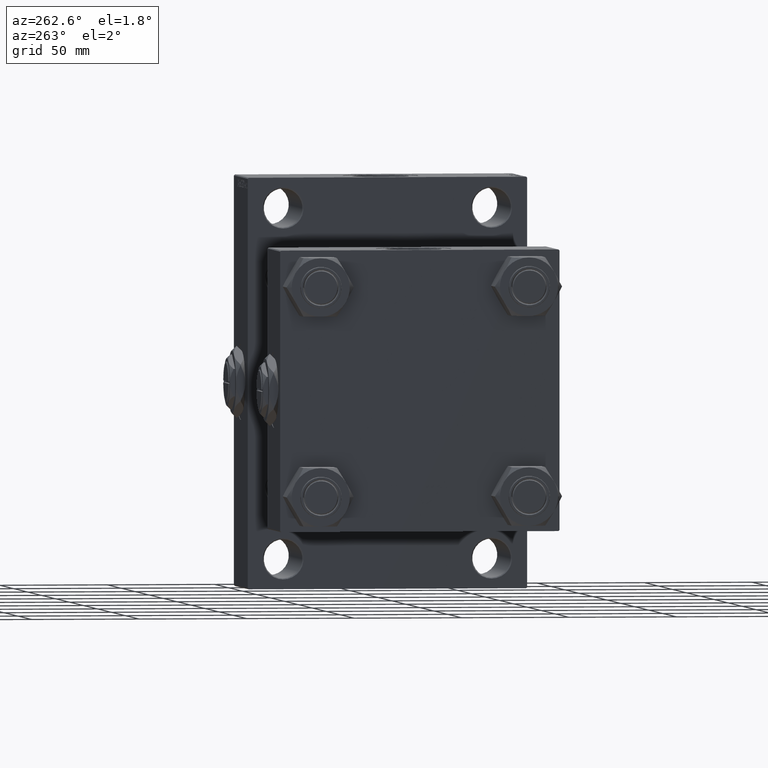
[diagram: clean part render]
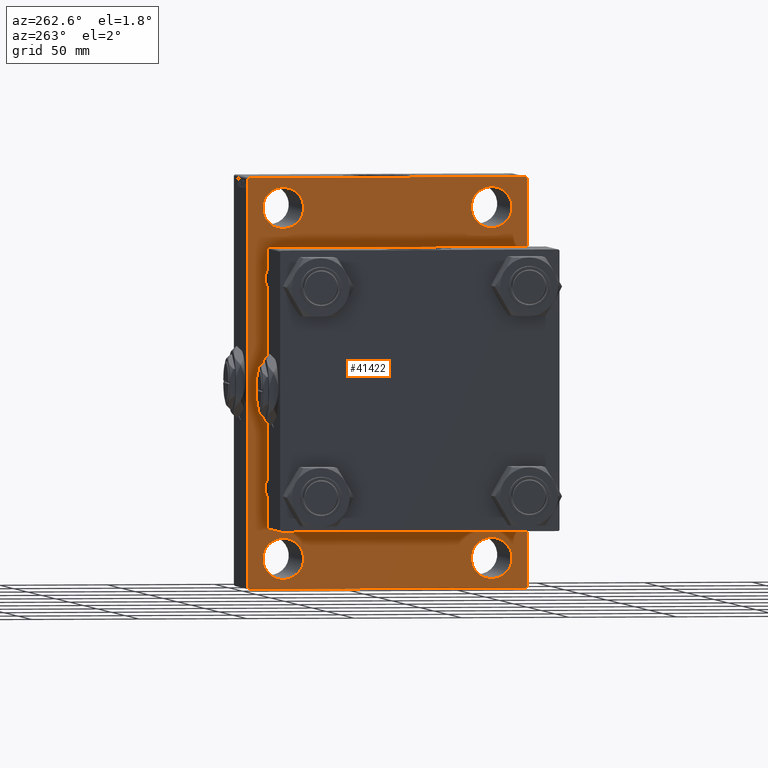
[diagram: same view with one face highlighted and labeled with its STEP entity id]
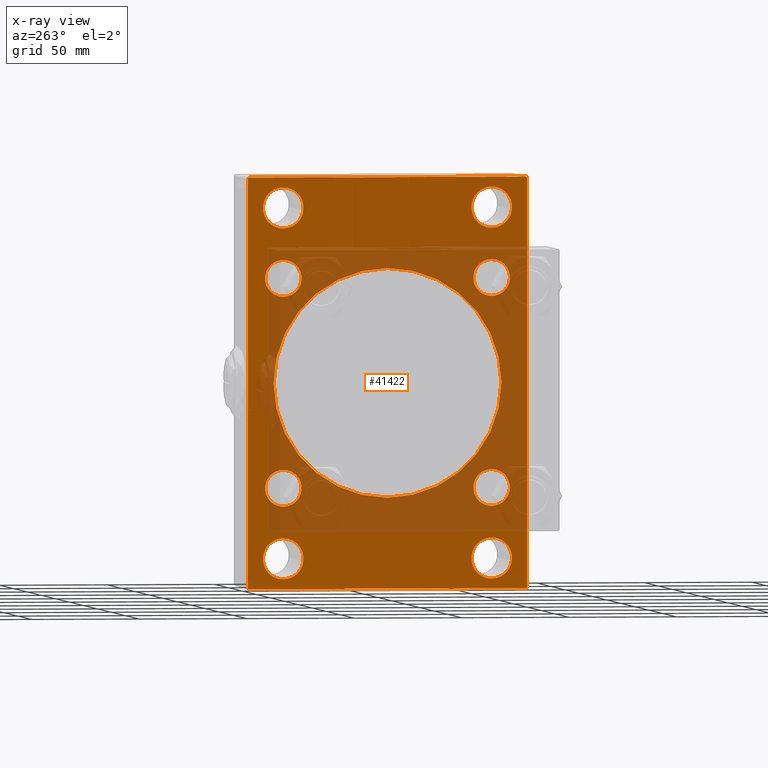
[diagram: x-ray of the same camera — body ghosted, the highlighted face saturated]
A machine part, auxiliary view. The second image highlights one B-rep face of the part: STEP entity #41422.
The next image is the same camera in x-ray: the body ghosted, the highlighted face saturated — about 46% of this face is hidden behind the body in this view.
In plain terms, the highlighted planar face has unit normal (-1, 0, 0).
Its self-contained STEP definition (entity closure, byte-faithful):
#14 = AXIS2_PLACEMENT_3D ( 'NONE', #46926, #38851, #1252 ) ;
#598 = DIRECTION ( 'NONE',  ( 0.000000000000000000, 0.000000000000000000, 1.000000000000000000 ) ) ;
#873 = ORIENTED_EDGE ( 'NONE', *, *, #17060, .T. ) ;
#1092 = CARTESIAN_POINT ( 'NONE',  ( 115.9999999999999858, 48.45000000000000995, -39.95000000000000284 ) ) ;
#1206 = CIRCLE ( 'NONE', #15705, 8.500000000000007105 ) ;
#1252 = DIRECTION ( 'NONE',  ( 0.000000000000000000, 0.000000000000000000, 1.000000000000000000 ) ) ;
#1428 = ORIENTED_EDGE ( 'NONE', *, *, #17265, .T. ) ;
#1498 = EDGE_LOOP ( 'NONE', ( #7069, #46409 ) ) ;
#1553 = CARTESIAN_POINT ( 'NONE',  ( 115.9999999999999858, -48.49999999999999289, -71.50000000000001421 ) ) ;
#1800 = AXIS2_PLACEMENT_3D ( 'NONE', #33002, #25191, #36312 ) ;
#2443 = DIRECTION ( 'NONE',  ( 1.000000000000000000, -0.000000000000000000, 0.000000000000000000 ) ) ;
#2500 = FACE_BOUND ( 'NONE', #41405, .T. ) ;
#2523 = EDGE_CURVE ( 'NONE', #48071, #3703, #29743, .T. ) ;
#2578 = LINE ( 'NONE', #48748, #11641 ) ;
#2646 = ORIENTED_EDGE ( 'NONE', *, *, #5036, .T. ) ;
#2910 = ORIENTED_EDGE ( 'NONE', *, *, #12213, .T. ) ;
#3047 = CARTESIAN_POINT ( 'NONE',  ( 115.9999999999999858, 64.99999999999997158, 94.49999999999997158 ) ) ;
#3055 = EDGE_CURVE ( 'NONE', #34445, #22183, #12833, .T. ) ;
#3158 = EDGE_CURVE ( 'NONE', #11846, #34445, #14069, .T. ) ;
#3239 = CIRCLE ( 'NONE', #14, 8.500000000000007105 ) ;
#3262 = CARTESIAN_POINT ( 'NONE',  ( 115.9999999999999858, -2.602085213965210642E-15, 0.000000000000000000 ) ) ;
#3703 = VERTEX_POINT ( 'NONE', #11448 ) ;
#3934 = CARTESIAN_POINT ( 'NONE',  ( 115.9999999999999858, -65.00000000000001421, 94.99999999999997158 ) ) ;
#3974 = DIRECTION ( 'NONE',  ( 1.000000000000000000, -0.000000000000000000, 0.000000000000000000 ) ) ;
#4054 = CARTESIAN_POINT ( 'NONE',  ( 115.9999999999999858, -48.44999999999999574, -56.95000000000003837 ) ) ;
#4087 = LINE ( 'NONE', #18963, #30972 ) ;
#4691 = VERTEX_POINT ( 'NONE', #28852 ) ;
#4846 = VERTEX_POINT ( 'NONE', #1553 ) ;
#4856 = CARTESIAN_POINT ( 'NONE',  ( 115.9999999999999858, 48.45000000000000995, 48.45000000000001705 ) ) ;
#5036 = EDGE_CURVE ( 'NONE', #7720, #33163, #3239, .T. ) ;
#5406 = DIRECTION ( 'NONE',  ( 0.000000000000000000, 0.000000000000000000, 1.000000000000000000 ) ) ;
#5513 = CIRCLE ( 'NONE', #34540, 8.500000000000007105 ) ;
#5753 = CIRCLE ( 'NONE', #47655, 9.500000000000092371 ) ;
#5835 = DIRECTION ( 'NONE',  ( 0.000000000000000000, 0.000000000000000000, 1.000000000000000000 ) ) ;
#6028 = FACE_BOUND ( 'NONE', #17193, .T. ) ;
#6477 = ORIENTED_EDGE ( 'NONE', *, *, #10950, .T. ) ;
#6520 = FACE_OUTER_BOUND ( 'NONE', #17922, .T. ) ;
#6701 = CARTESIAN_POINT ( 'NONE',  ( 115.9999999999999858, -48.50000000000000000, 90.50000000000009948 ) ) ;
#6788 = VERTEX_POINT ( 'NONE', #13653 ) ;
#6838 = EDGE_LOOP ( 'NONE', ( #35459, #6477 ) ) ;
#7069 = ORIENTED_EDGE ( 'NONE', *, *, #2523, .T. ) ;
#7123 = EDGE_CURVE ( 'NONE', #4691, #33632, #36371, .T. ) ;
#7165 = CARTESIAN_POINT ( 'NONE',  ( 115.9999999999999858, -65.00000000000001421, 94.49999999999997158 ) ) ;
#7234 = VECTOR ( 'NONE', #17938, 1000.000000000000000 ) ;
#7495 = DIRECTION ( 'NONE',  ( 0.000000000000000000, 0.000000000000000000, 1.000000000000000000 ) ) ;
#7636 = EDGE_LOOP ( 'NONE', ( #47562, #18898 ) ) ;
#7720 = VERTEX_POINT ( 'NONE', #1092 ) ;
#7751 = CARTESIAN_POINT ( 'NONE',  ( 115.9999999999999858, -48.44999999999999574, -48.45000000000003126 ) ) ;
#7997 = DIRECTION ( 'NONE',  ( 0.000000000000000000, 0.000000000000000000, 1.000000000000000000 ) ) ;
#8063 = VERTEX_POINT ( 'NONE', #47451 ) ;
#8406 = CIRCLE ( 'NONE', #35831, 9.500000000000008882 ) ;
#8888 = DIRECTION ( 'NONE',  ( 0.000000000000000000, 0.000000000000000000, 1.000000000000000000 ) ) ;
#9700 = EDGE_CURVE ( 'NONE', #31981, #29668, #39647, .T. ) ;
#10180 = DIRECTION ( 'NONE',  ( 0.000000000000000000, 0.000000000000000000, 1.000000000000000000 ) ) ;
#10549 = FACE_BOUND ( 'NONE', #1498, .T. ) ;
#10629 = VECTOR ( 'NONE', #31228, 1000.000000000000114 ) ;
#10744 = DIRECTION ( 'NONE',  ( 1.000000000000000000, -0.000000000000000000, 0.000000000000000000 ) ) ;
#10894 = DIRECTION ( 'NONE',  ( 1.000000000000000000, 0.000000000000000000, 0.000000000000000000 ) ) ;
#10917 = VERTEX_POINT ( 'NONE', #21235 ) ;
#10950 = EDGE_CURVE ( 'NONE', #6788, #24246, #5753, .T. ) ;
#11448 = CARTESIAN_POINT ( 'NONE',  ( 115.9999999999999858, 3.888542821515762466E-15, -53.00000000000000711 ) ) ;
#11543 = CARTESIAN_POINT ( 'NONE',  ( 115.9999999999999858, 79.74999999999997158, 79.74999999999997158 ) ) ;
#11641 = VECTOR ( 'NONE', #13428, 1000.000000000000000 ) ;
#11818 = DIRECTION ( 'NONE',  ( 0.000000000000000000, 0.000000000000000000, -1.000000000000000000 ) ) ;
#11846 = VERTEX_POINT ( 'NONE', #44220 ) ;
#12213 = EDGE_CURVE ( 'NONE', #19889, #29395, #49400, .T. ) ;
#12470 = AXIS2_PLACEMENT_3D ( 'NONE', #45223, #14424, #38653 ) ;
#12692 = DIRECTION ( 'NONE',  ( 1.000000000000000000, -0.000000000000000000, 0.000000000000000000 ) ) ;
#12775 = CIRCLE ( 'NONE', #44200, 9.500000000000092371 ) ;
#12833 = LINE ( 'NONE', #43879, #38646 ) ;
#12982 = AXIS2_PLACEMENT_3D ( 'NONE', #28941, #2443, #37250 ) ;
#12992 = LINE ( 'NONE', #43054, #41362 ) ;
#13163 = AXIS2_PLACEMENT_3D ( 'NONE', #3262, #26470, #11818 ) ;
#13195 = CARTESIAN_POINT ( 'NONE',  ( 115.9999999999999858, -48.44999999999999574, 48.45000000000003126 ) ) ;
#13428 = DIRECTION ( 'NONE',  ( -0.000000000000000000, 0.7071067811865378028, 0.7071067811865573427 ) ) ;
#13588 = FACE_BOUND ( 'NONE', #7636, .T. ) ;
#13653 = CARTESIAN_POINT ( 'NONE',  ( 115.9999999999999858, -48.50000000000000000, 71.49999999999991473 ) ) ;
#13816 = CARTESIAN_POINT ( 'NONE',  ( 115.9999999999999858, 64.99999999999998579, -95.00000000000001421 ) ) ;
#13900 = DIRECTION ( 'NONE',  ( 0.000000000000000000, 0.000000000000000000, 1.000000000000000000 ) ) ;
#14069 = LINE ( 'NONE', #13816, #45093 ) ;
#14424 = DIRECTION ( 'NONE',  ( 1.000000000000000000, -0.000000000000000000, 0.000000000000000000 ) ) ;
#14711 = CIRCLE ( 'NONE', #28451, 8.500000000000007105 ) ;
#14884 = CARTESIAN_POINT ( 'NONE',  ( 115.9999999999999858, 48.45000000000000995, 39.95000000000000284 ) ) ;
#15642 = EDGE_LOOP ( 'NONE', ( #39625, #25356 ) ) ;
#15705 = AXIS2_PLACEMENT_3D ( 'NONE', #4856, #35649, #8888 ) ;
#15809 = CARTESIAN_POINT ( 'NONE',  ( 115.9999999999999858, 48.50000000000000711, 90.50000000000009948 ) ) ;
#16033 = DIRECTION ( 'NONE',  ( 0.000000000000000000, 0.000000000000000000, 1.000000000000000000 ) ) ;
#16038 = ORIENTED_EDGE ( 'NONE', *, *, #17383, .T. ) ;
#16170 = CARTESIAN_POINT ( 'NONE',  ( 115.9999999999999858, -48.44999999999999574, 39.95000000000001705 ) ) ;
#16652 = CIRCLE ( 'NONE', #43241, 8.500000000000007105 ) ;
#16763 = LINE ( 'NONE', #36197, #7234 ) ;
#16833 = EDGE_CURVE ( 'NONE', #29668, #31981, #12775, .T. ) ;
#17060 = EDGE_CURVE ( 'NONE', #33163, #7720, #41776, .T. ) ;
#17193 = EDGE_LOOP ( 'NONE', ( #2646, #873 ) ) ;
#17265 = EDGE_CURVE ( 'NONE', #33632, #4691, #45824, .T. ) ;
#17383 = EDGE_CURVE ( 'NONE', #21683, #31585, #5513, .T. ) ;
#17879 = AXIS2_PLACEMENT_3D ( 'NONE', #20036, #32151, #5406 ) ;
#17922 = EDGE_LOOP ( 'NONE', ( #46227, #35116, #47193, #38728, #45528, #2910, #19241, #48805 ) ) ;
#17938 = DIRECTION ( 'NONE',  ( -0.000000000000000000, -0.7071067811865573427, -0.7071067811865378028 ) ) ;
#18066 = ORIENTED_EDGE ( 'NONE', *, *, #37519, .T. ) ;
#18085 = VERTEX_POINT ( 'NONE', #7165 ) ;
#18174 = CARTESIAN_POINT ( 'NONE',  ( 115.9999999999999858, 48.45000000000000995, 56.95000000000002416 ) ) ;
#18185 = ORIENTED_EDGE ( 'NONE', *, *, #45878, .T. ) ;
#18898 = ORIENTED_EDGE ( 'NONE', *, *, #9700, .T. ) ;
#18963 = CARTESIAN_POINT ( 'NONE',  ( 115.9999999999999858, 64.99999999999997158, 94.99999999999997158 ) ) ;
#19241 = ORIENTED_EDGE ( 'NONE', *, *, #36880, .T. ) ;
#19566 = CARTESIAN_POINT ( 'NONE',  ( 115.9999999999999858, -48.49999999999999289, -81.00000000000001421 ) ) ;
#19889 = VERTEX_POINT ( 'NONE', #39141 ) ;
#19980 = CARTESIAN_POINT ( 'NONE',  ( 115.9999999999999858, -64.50000000000001421, -95.00000000000002842 ) ) ;
#20036 = CARTESIAN_POINT ( 'NONE',  ( 115.9999999999999858, 48.50000000000000711, 81.00000000000000000 ) ) ;
#20332 = AXIS2_PLACEMENT_3D ( 'NONE', #29464, #42061, #7495 ) ;
#20990 = CARTESIAN_POINT ( 'NONE',  ( 115.9999999999999858, 48.45000000000000995, 48.45000000000001705 ) ) ;
#21235 = CARTESIAN_POINT ( 'NONE',  ( 115.9999999999999858, -48.44999999999999574, -39.95000000000001705 ) ) ;
#21628 = AXIS2_PLACEMENT_3D ( 'NONE', #39428, #42727, #598 ) ;
#21683 = VERTEX_POINT ( 'NONE', #18174 ) ;
#21905 = CARTESIAN_POINT ( 'NONE',  ( 115.9999999999999858, 0.000000000000000000, 0.000000000000000000 ) ) ;
#22046 = EDGE_LOOP ( 'NONE', ( #18066, #36538 ) ) ;
#22183 = VERTEX_POINT ( 'NONE', #33514 ) ;
#22543 = DIRECTION ( 'NONE',  ( 1.000000000000000000, -0.000000000000000000, 0.000000000000000000 ) ) ;
#22676 = EDGE_CURVE ( 'NONE', #33288, #11846, #16763, .T. ) ;
#23120 = DIRECTION ( 'NONE',  ( 0.000000000000000000, 0.000000000000000000, 1.000000000000000000 ) ) ;
#24015 = CARTESIAN_POINT ( 'NONE',  ( 115.9999999999999858, 48.50000000000000711, -90.50000000000002842 ) ) ;
#24246 = VERTEX_POINT ( 'NONE', #6701 ) ;
#25191 = DIRECTION ( 'NONE',  ( 1.000000000000000000, -0.000000000000000000, 0.000000000000000000 ) ) ;
#25356 = ORIENTED_EDGE ( 'NONE', *, *, #48532, .T. ) ;
#26110 = CARTESIAN_POINT ( 'NONE',  ( 115.9999999999999858, -2.602085213965210642E-15, 53.00000000000000711 ) ) ;
#26378 = CARTESIAN_POINT ( 'NONE',  ( 115.9999999999999858, 64.99999999999998579, -94.50000000000002842 ) ) ;
#26470 = DIRECTION ( 'NONE',  ( 1.000000000000000000, 0.000000000000000000, 0.000000000000000000 ) ) ;
#26902 = LINE ( 'NONE', #3934, #30192 ) ;
#27794 = CIRCLE ( 'NONE', #12470, 9.500000000000092371 ) ;
#28451 = AXIS2_PLACEMENT_3D ( 'NONE', #13195, #12692, #43744 ) ;
#28713 = CARTESIAN_POINT ( 'NONE',  ( 115.9999999999999858, -48.44999999999999574, 56.95000000000003837 ) ) ;
#28753 = PLANE ( 'NONE',  #48035 ) ;
#28852 = CARTESIAN_POINT ( 'NONE',  ( 115.9999999999999858, 48.50000000000000711, -71.50000000000001421 ) ) ;
#28887 = EDGE_CURVE ( 'NONE', #8063, #4846, #33227, .T. ) ;
#28941 = CARTESIAN_POINT ( 'NONE',  ( 115.9999999999999858, 48.50000000000000711, -81.00000000000001421 ) ) ;
#28998 = FACE_BOUND ( 'NONE', #15642, .T. ) ;
#29244 = FACE_BOUND ( 'NONE', #22046, .T. ) ;
#29395 = VERTEX_POINT ( 'NONE', #3047 ) ;
#29464 = CARTESIAN_POINT ( 'NONE',  ( 115.9999999999999858, -48.44999999999999574, 48.45000000000003126 ) ) ;
#29488 = EDGE_CURVE ( 'NONE', #47145, #35392, #46148, .T. ) ;
#29601 = CARTESIAN_POINT ( 'NONE',  ( 115.9999999999999858, 48.50000000000000711, 71.49999999999991473 ) ) ;
#29668 = VERTEX_POINT ( 'NONE', #15809 ) ;
#29743 = CIRCLE ( 'NONE', #49081, 53.00000000000000711 ) ;
#30082 = CARTESIAN_POINT ( 'NONE',  ( 115.9999999999999858, -2.602085213965210642E-15, 0.000000000000000000 ) ) ;
#30147 = EDGE_CURVE ( 'NONE', #35392, #47145, #14711, .T. ) ;
#30192 = VECTOR ( 'NONE', #49854, 1000.000000000000000 ) ;
#30396 = EDGE_LOOP ( 'NONE', ( #16038, #18185 ) ) ;
#30533 = CARTESIAN_POINT ( 'NONE',  ( 115.9999999999999858, 48.45000000000000995, -56.95000000000002416 ) ) ;
#30972 = VECTOR ( 'NONE', #38408, 1000.000000000000000 ) ;
#31228 = DIRECTION ( 'NONE',  ( 0.000000000000000000, 0.7071067811865474617, -0.7071067811865474617 ) ) ;
#31585 = VERTEX_POINT ( 'NONE', #14884 ) ;
#31981 = VERTEX_POINT ( 'NONE', #29601 ) ;
#32151 = DIRECTION ( 'NONE',  ( 1.000000000000000000, -0.000000000000000000, 0.000000000000000000 ) ) ;
#33002 = CARTESIAN_POINT ( 'NONE',  ( 115.9999999999999858, -48.49999999999999289, -81.00000000000001421 ) ) ;
#33082 = CARTESIAN_POINT ( 'NONE',  ( 115.9999999999999858, -48.50000000000000000, 81.00000000000000000 ) ) ;
#33163 = VERTEX_POINT ( 'NONE', #30533 ) ;
#33227 = CIRCLE ( 'NONE', #1800, 9.500000000000008882 ) ;
#33268 = FACE_BOUND ( 'NONE', #6838, .T. ) ;
#33281 = VERTEX_POINT ( 'NONE', #49331 ) ;
#33288 = VERTEX_POINT ( 'NONE', #26378 ) ;
#33360 = DIRECTION ( 'NONE',  ( 0.000000000000000000, 0.000000000000000000, -1.000000000000000000 ) ) ;
#33514 = CARTESIAN_POINT ( 'NONE',  ( 115.9999999999999858, -65.00000000000001421, -94.50000000000002842 ) ) ;
#33632 = VERTEX_POINT ( 'NONE', #24015 ) ;
#34321 = AXIS2_PLACEMENT_3D ( 'NONE', #45329, #10744, #5835 ) ;
#34445 = VERTEX_POINT ( 'NONE', #19980 ) ;
#34540 = AXIS2_PLACEMENT_3D ( 'NONE', #20990, #47758, #44461 ) ;
#35116 = ORIENTED_EDGE ( 'NONE', *, *, #3055, .T. ) ;
#35217 = CARTESIAN_POINT ( 'NONE',  ( 115.9999999999999858, 48.50000000000000711, 81.00000000000000000 ) ) ;
#35298 = EDGE_CURVE ( 'NONE', #3703, #48071, #47828, .T. ) ;
#35392 = VERTEX_POINT ( 'NONE', #28713 ) ;
#35418 = ORIENTED_EDGE ( 'NONE', *, *, #29488, .T. ) ;
#35459 = ORIENTED_EDGE ( 'NONE', *, *, #38930, .T. ) ;
#35640 = EDGE_CURVE ( 'NONE', #19889, #33281, #12992, .T. ) ;
#35649 = DIRECTION ( 'NONE',  ( 1.000000000000000000, -0.000000000000000000, 0.000000000000000000 ) ) ;
#35831 = AXIS2_PLACEMENT_3D ( 'NONE', #19566, #39011, #23120 ) ;
#36197 = CARTESIAN_POINT ( 'NONE',  ( 115.9999999999999858, 79.74999999999913314, -79.75000000000132161 ) ) ;
#36219 = DIRECTION ( 'NONE',  ( 0.000000000000000000, -1.000000000000000000, 0.000000000000000000 ) ) ;
#36312 = DIRECTION ( 'NONE',  ( 0.000000000000000000, 0.000000000000000000, 1.000000000000000000 ) ) ;
#36371 = CIRCLE ( 'NONE', #12982, 9.500000000000008882 ) ;
#36538 = ORIENTED_EDGE ( 'NONE', *, *, #28887, .T. ) ;
#36776 = CIRCLE ( 'NONE', #34321, 8.500000000000007105 ) ;
#36880 = EDGE_CURVE ( 'NONE', #29395, #33288, #4087, .T. ) ;
#37250 = DIRECTION ( 'NONE',  ( 0.000000000000000000, 0.000000000000000000, 1.000000000000000000 ) ) ;
#37519 = EDGE_CURVE ( 'NONE', #4846, #8063, #8406, .T. ) ;
#38001 = EDGE_CURVE ( 'NONE', #18085, #33281, #2578, .T. ) ;
#38408 = DIRECTION ( 'NONE',  ( 0.000000000000000000, 7.304098846218135653E-17, -1.000000000000000000 ) ) ;
#38646 = VECTOR ( 'NONE', #43633, 1000.000000000000114 ) ;
#38653 = DIRECTION ( 'NONE',  ( 0.000000000000000000, 0.000000000000000000, 1.000000000000000000 ) ) ;
#38728 = ORIENTED_EDGE ( 'NONE', *, *, #38001, .T. ) ;
#38757 = DIRECTION ( 'NONE',  ( 1.000000000000000000, -0.000000000000000000, 0.000000000000000000 ) ) ;
#38851 = DIRECTION ( 'NONE',  ( 1.000000000000000000, -0.000000000000000000, 0.000000000000000000 ) ) ;
#38930 = EDGE_CURVE ( 'NONE', #24246, #6788, #27794, .T. ) ;
#39011 = DIRECTION ( 'NONE',  ( 1.000000000000000000, -0.000000000000000000, 0.000000000000000000 ) ) ;
#39141 = CARTESIAN_POINT ( 'NONE',  ( 115.9999999999999858, 64.49999999999997158, 94.99999999999997158 ) ) ;
#39368 = AXIS2_PLACEMENT_3D ( 'NONE', #48798, #22543, #10180 ) ;
#39428 = CARTESIAN_POINT ( 'NONE',  ( 115.9999999999999858, 48.50000000000000711, -81.00000000000001421 ) ) ;
#39625 = ORIENTED_EDGE ( 'NONE', *, *, #43045, .T. ) ;
#39647 = CIRCLE ( 'NONE', #17879, 9.500000000000092371 ) ;
#40035 = ORIENTED_EDGE ( 'NONE', *, *, #7123, .T. ) ;
#41232 = VERTEX_POINT ( 'NONE', #4054 ) ;
#41339 = FACE_BOUND ( 'NONE', #30396, .T. ) ;
#41362 = VECTOR ( 'NONE', #36219, 1000.000000000000000 ) ;
#41405 = EDGE_LOOP ( 'NONE', ( #46931, #35418 ) ) ;
#41422 = ADVANCED_FACE ( 'NONE', ( #33268, #29244, #44642, #13588, #2500, #41339, #6028, #28998, #10549, #6520 ), #28753, .T. ) ;
#41776 = CIRCLE ( 'NONE', #39368, 8.500000000000007105 ) ;
#42061 = DIRECTION ( 'NONE',  ( 1.000000000000000000, -0.000000000000000000, 0.000000000000000000 ) ) ;
#42727 = DIRECTION ( 'NONE',  ( 1.000000000000000000, -0.000000000000000000, 0.000000000000000000 ) ) ;
#43045 = EDGE_CURVE ( 'NONE', #10917, #41232, #16652, .T. ) ;
#43054 = CARTESIAN_POINT ( 'NONE',  ( 115.9999999999999858, 64.99999999999997158, 94.99999999999997158 ) ) ;
#43236 = EDGE_LOOP ( 'NONE', ( #40035, #1428 ) ) ;
#43241 = AXIS2_PLACEMENT_3D ( 'NONE', #7751, #3974, #7997 ) ;
#43633 = DIRECTION ( 'NONE',  ( 0.000000000000000000, -0.7071067811865474617, 0.7071067811865474617 ) ) ;
#43744 = DIRECTION ( 'NONE',  ( 0.000000000000000000, 0.000000000000000000, 1.000000000000000000 ) ) ;
#43879 = CARTESIAN_POINT ( 'NONE',  ( 115.9999999999999858, -79.75000000000001421, -79.75000000000001421 ) ) ;
#44200 = AXIS2_PLACEMENT_3D ( 'NONE', #35217, #38757, #16033 ) ;
#44220 = CARTESIAN_POINT ( 'NONE',  ( 115.9999999999999858, 64.49999999999998579, -95.00000000000001421 ) ) ;
#44461 = DIRECTION ( 'NONE',  ( 0.000000000000000000, 0.000000000000000000, 1.000000000000000000 ) ) ;
#44642 = FACE_BOUND ( 'NONE', #43236, .T. ) ;
#45093 = VECTOR ( 'NONE', #49386, 1000.000000000000000 ) ;
#45223 = CARTESIAN_POINT ( 'NONE',  ( 115.9999999999999858, -48.50000000000000000, 81.00000000000000000 ) ) ;
#45329 = CARTESIAN_POINT ( 'NONE',  ( 115.9999999999999858, -48.44999999999999574, -48.45000000000003126 ) ) ;
#45421 = EDGE_CURVE ( 'NONE', #18085, #22183, #26902, .T. ) ;
#45528 = ORIENTED_EDGE ( 'NONE', *, *, #35640, .F. ) ;
#45824 = CIRCLE ( 'NONE', #21628, 9.500000000000008882 ) ;
#45878 = EDGE_CURVE ( 'NONE', #31585, #21683, #1206, .T. ) ;
#46148 = CIRCLE ( 'NONE', #20332, 8.500000000000007105 ) ;
#46227 = ORIENTED_EDGE ( 'NONE', *, *, #3158, .T. ) ;
#46409 = ORIENTED_EDGE ( 'NONE', *, *, #35298, .T. ) ;
#46926 = CARTESIAN_POINT ( 'NONE',  ( 115.9999999999999858, 48.45000000000000995, -48.45000000000001705 ) ) ;
#46931 = ORIENTED_EDGE ( 'NONE', *, *, #30147, .T. ) ;
#47145 = VERTEX_POINT ( 'NONE', #16170 ) ;
#47193 = ORIENTED_EDGE ( 'NONE', *, *, #45421, .F. ) ;
#47451 = CARTESIAN_POINT ( 'NONE',  ( 115.9999999999999858, -48.49999999999999289, -90.50000000000002842 ) ) ;
#47562 = ORIENTED_EDGE ( 'NONE', *, *, #16833, .T. ) ;
#47655 = AXIS2_PLACEMENT_3D ( 'NONE', #33082, #48487, #13900 ) ;
#47758 = DIRECTION ( 'NONE',  ( 1.000000000000000000, -0.000000000000000000, 0.000000000000000000 ) ) ;
#47828 = CIRCLE ( 'NONE', #13163, 53.00000000000000711 ) ;
#47933 = DIRECTION ( 'NONE',  ( -0.000000000000000000, 0.000000000000000000, 1.000000000000000000 ) ) ;
#48035 = AXIS2_PLACEMENT_3D ( 'NONE', #21905, #48670, #47933 ) ;
#48071 = VERTEX_POINT ( 'NONE', #26110 ) ;
#48487 = DIRECTION ( 'NONE',  ( 1.000000000000000000, -0.000000000000000000, 0.000000000000000000 ) ) ;
#48532 = EDGE_CURVE ( 'NONE', #41232, #10917, #36776, .T. ) ;
#48670 = DIRECTION ( 'NONE',  ( -1.000000000000000000, 0.000000000000000000, -0.000000000000000000 ) ) ;
#48748 = CARTESIAN_POINT ( 'NONE',  ( 115.9999999999999858, -79.75000000000089528, 79.74999999999867839 ) ) ;
#48798 = CARTESIAN_POINT ( 'NONE',  ( 115.9999999999999858, 48.45000000000000995, -48.45000000000001705 ) ) ;
#48805 = ORIENTED_EDGE ( 'NONE', *, *, #22676, .T. ) ;
#49081 = AXIS2_PLACEMENT_3D ( 'NONE', #30082, #10894, #33360 ) ;
#49331 = CARTESIAN_POINT ( 'NONE',  ( 115.9999999999999858, -64.50000000000002842, 94.99999999999997158 ) ) ;
#49386 = DIRECTION ( 'NONE',  ( 0.000000000000000000, -1.000000000000000000, -1.067522139062650425E-16 ) ) ;
#49400 = LINE ( 'NONE', #11543, #10629 ) ;
#49854 = DIRECTION ( 'NONE',  ( 0.000000000000000000, 0.000000000000000000, -1.000000000000000000 ) ) ;